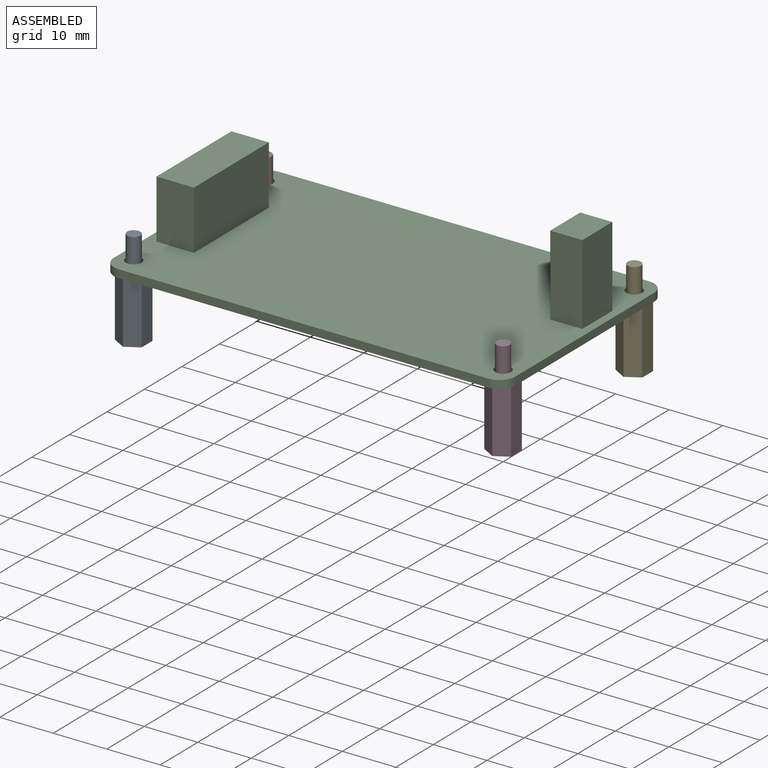
[diagram: assembled view]
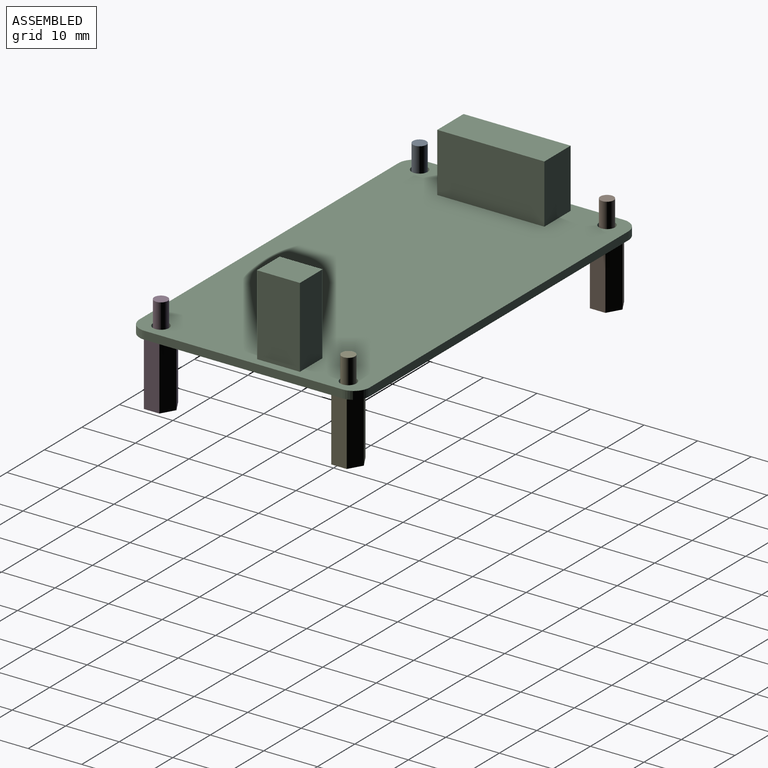
[diagram: assembled view, second angle]
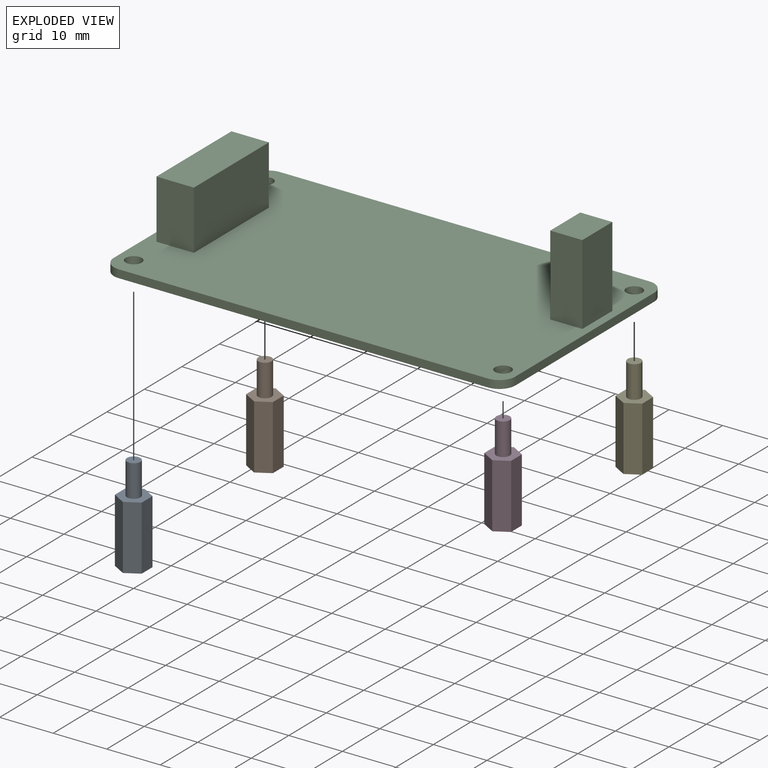
[diagram: exploded view]
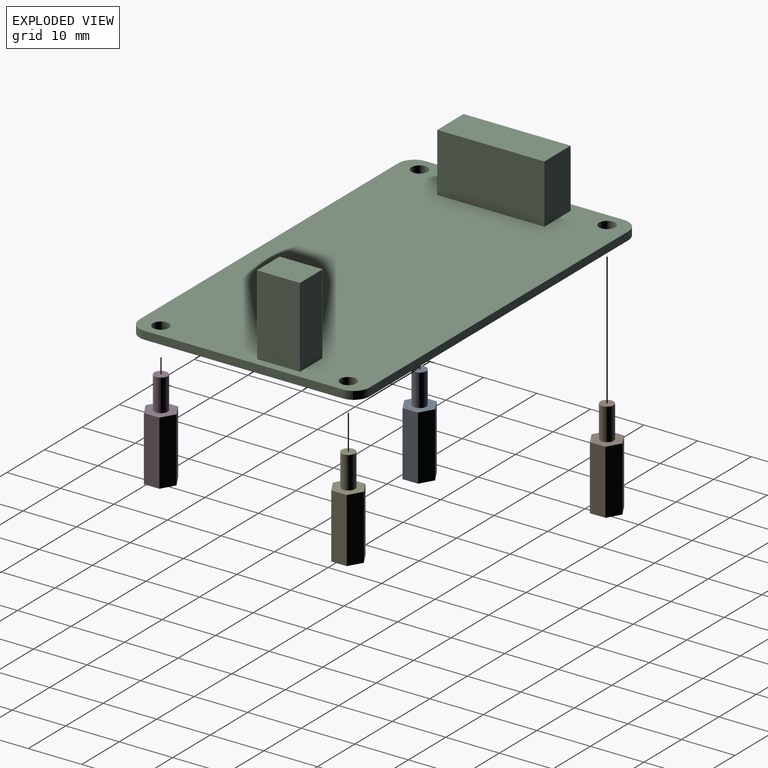
[diagram: exploded view, second angle]
ASSEMBLY  parts=5 mates=8
PART A: 12 faces, bbox 5x5.8x18 mm
  f0: plane 12x2.5mm, normal (-0.5,0.87,0), area 34.6mm2, adj f1,f5,f6,f7
  f1: plane 12x2.89mm, normal (-1,0,0), area 34.6mm2, adj f0,f2,f6,f7
  f2: plane 12x2.5mm, normal (-0.5,-0.87,0), area 34.6mm2, adj f1,f3,f6,f7
  f3: plane 12x2.5mm, normal (0.5,-0.87,0), area 34.6mm2, adj f2,f4,f6,f7
  f4: plane 12x2.89mm, normal (1,0,0), area 34.6mm2, adj f3,f5,f6,f7
  f5: plane 12x2.5mm, normal (0.5,0.87,0), area 34.6mm2, adj f0,f4,f6,f7
  f6: plane 5.77x5mm, normal (0,0,1), area 16.7mm2, adj f0,f1,f2,f3,f4,f5,f8
  f7: plane 5.77x5mm, normal (0,0,-1), area 16.7mm2, adj f0,f1,f2,f3,f4,f5,f10
  f8: cylinder r=1.25mm len=6mm, axis (0,0,-1), area 47.1mm2, adj f6,f9
  f9: plane 2.5x2.5mm, normal (0,0,1), area 4.9mm2, adj f8
  f10: cylinder r=1.25mm len=5mm, axis (0,0,-1), area 39.3mm2, adj f7,f11
  f11: cone r=0mm half-angle=59deg, axis (0,0,-1), area 5.7mm2, adj f10
PART B: same geometry as A
PART C: 24 faces, bbox 75x43x16.5 mm
  f0: plane 75x43mm, normal (0,0,1), area 3001mm2, adj f1,f2,f3,f4,f6,f7,f8,f9
  f1: plane 37x1.5mm, normal (-1,0,0), area 55.5mm2, adj f0,f5,f10,f13
  f2: plane 69x1.5mm, normal (0,-1,0), area 103.5mm2, adj f0,f5,f10,f11
  f3: plane 37x1.5mm, normal (1,0,0), area 55.5mm2, adj f0,f5,f11,f12
  f4: plane 69x1.5mm, normal (0,1,0), area 103.5mm2, adj f0,f5,f12,f13
  f5: plane 75x43mm, normal (0,0,-1), area 3189mm2, adj f1,f2,f3,f4,f6,f7,f8,f9
  f6: cylinder r=1.5mm len=3mm, axis (0,0,1), area 14.1mm2, adj f0,f5
  f7: cylinder r=1.5mm len=3mm, axis (0,0,1), area 14.1mm2, adj f0,f5
  f8: cylinder r=1.5mm len=3mm, axis (0,0,1), area 14.1mm2, adj f0,f5
  f9: cylinder r=1.5mm len=3mm, axis (0,0,1), area 14.1mm2, adj f0,f5
  f10: cylinder r=3mm len=3mm, axis (0,0,1), area 7.1mm2, adj f0,f1,f2,f5
  f11: cylinder r=3mm len=3mm, axis (0,0,-1), area 7.1mm2, adj f0,f2,f3,f5
  f12: cylinder r=3mm len=3mm, axis (0,0,1), area 7.1mm2, adj f0,f3,f4,f5
  f13: cylinder r=3mm len=3mm, axis (0,0,-1), area 7.1mm2, adj f0,f1,f4,f5
  f14: plane 20x11mm, normal (-1,0,0), area 220mm2, adj f0,f15,f17,f18
  f15: plane 11x7mm, normal (0,-1,0), area 77mm2, adj f0,f14,f16,f18
  f16: plane 20x11mm, normal (1,0,0), area 220mm2, adj f0,f15,f17,f18
  f17: plane 11x7mm, normal (0,1,0), area 77mm2, adj f0,f14,f16,f18
  f18: plane 20x7mm, normal (0,0,1), area 140mm2, adj f14,f15,f16,f17
  f19: plane 15x8mm, normal (-1,0,0), area 120mm2, adj f0,f20,f22,f23
  f20: plane 15x6mm, normal (0,-1,0), area 90mm2, adj f0,f19,f21,f23
  f21: plane 15x8mm, normal (1,0,0), area 120mm2, adj f0,f20,f22,f23
  f22: plane 15x6mm, normal (0,1,0), area 90mm2, adj f0,f19,f21,f23
  f23: plane 8x6mm, normal (0,0,1), area 48mm2, adj f19,f20,f21,f22
PART D: same geometry as A
PART E: same geometry as A
PLACE A t=(-42.85,-15.89,-10.61)mm
PLACE B t=(-42.85,19.11,-10.61)mm
PLACE C t=(-8.35,1.61,1.39)mm fixed
PLACE D t=(26.15,-15.89,-10.61)mm
PLACE E t=(26.15,19.11,-10.61)mm
MATE planar E.f8 <-> C.f5  axis (0,0,1) through (26.15,19.11,1.39)mm
MATE slider E.f8 <-> C.f7  axis (0,0,1) through (26.15,19.11,7.39)mm
MATE slider D.f8 <-> C.f8  axis (0,0,1) through (26.15,-15.89,7.39)mm
MATE planar D.f6 <-> C.f5  axis (0,0,1) through (24.9,-13.73,1.39)mm
MATE planar B.f8 <-> C.f5  axis (0,0,1) through (-42.85,19.11,1.39)mm
MATE planar A.f8 <-> C.f5  axis (0,0,1) through (-42.85,-15.89,1.39)mm
MATE slider B.f8 <-> C.f6  axis (0,0,1) through (-42.85,19.11,7.39)mm
MATE slider A.f8 <-> C.f9  axis (0,0,1) through (-42.85,-15.89,7.39)mm
